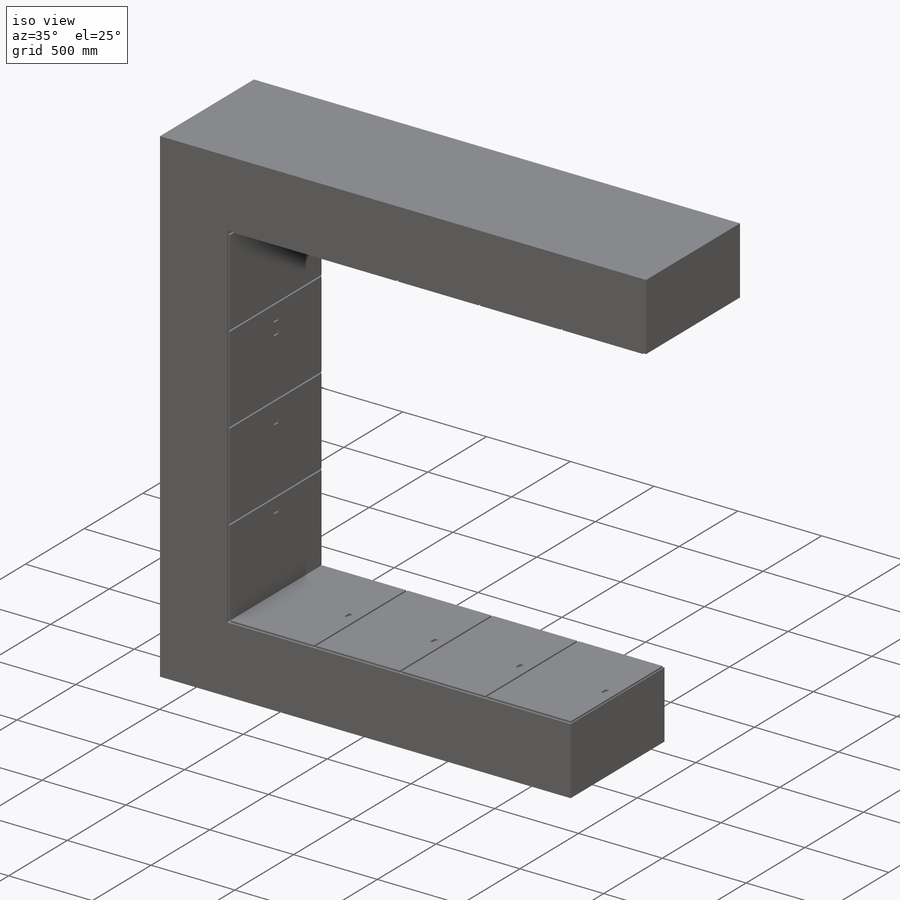
[diagram: iso view]
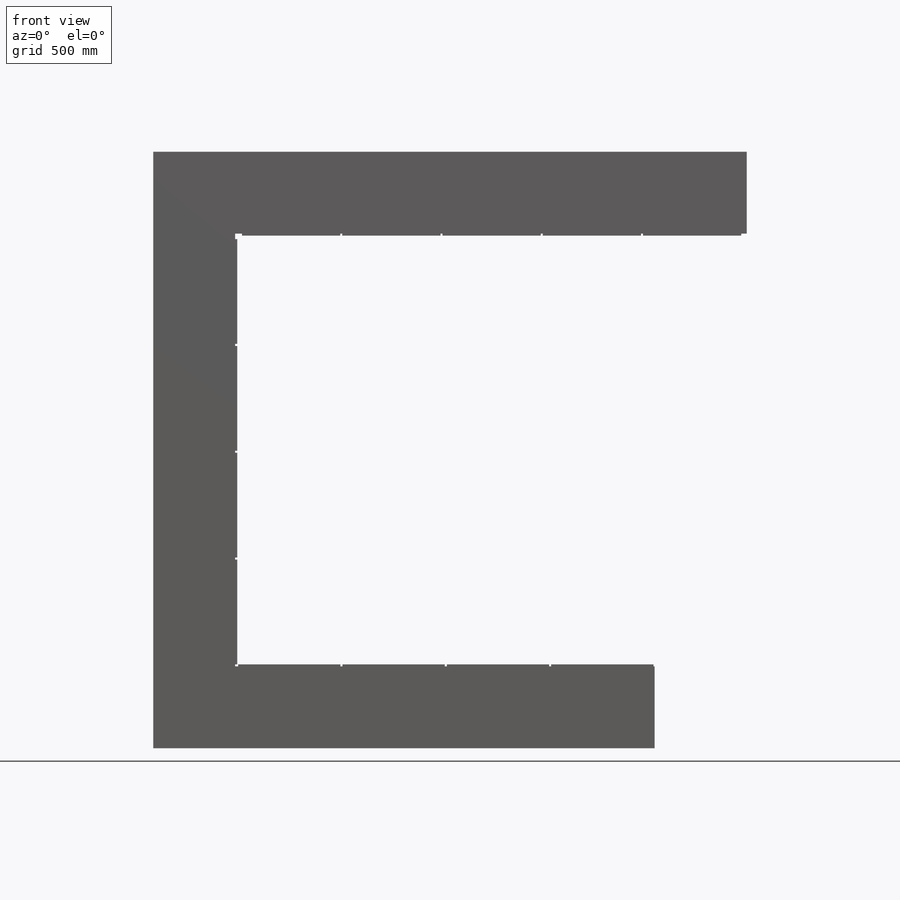
[diagram: front view]
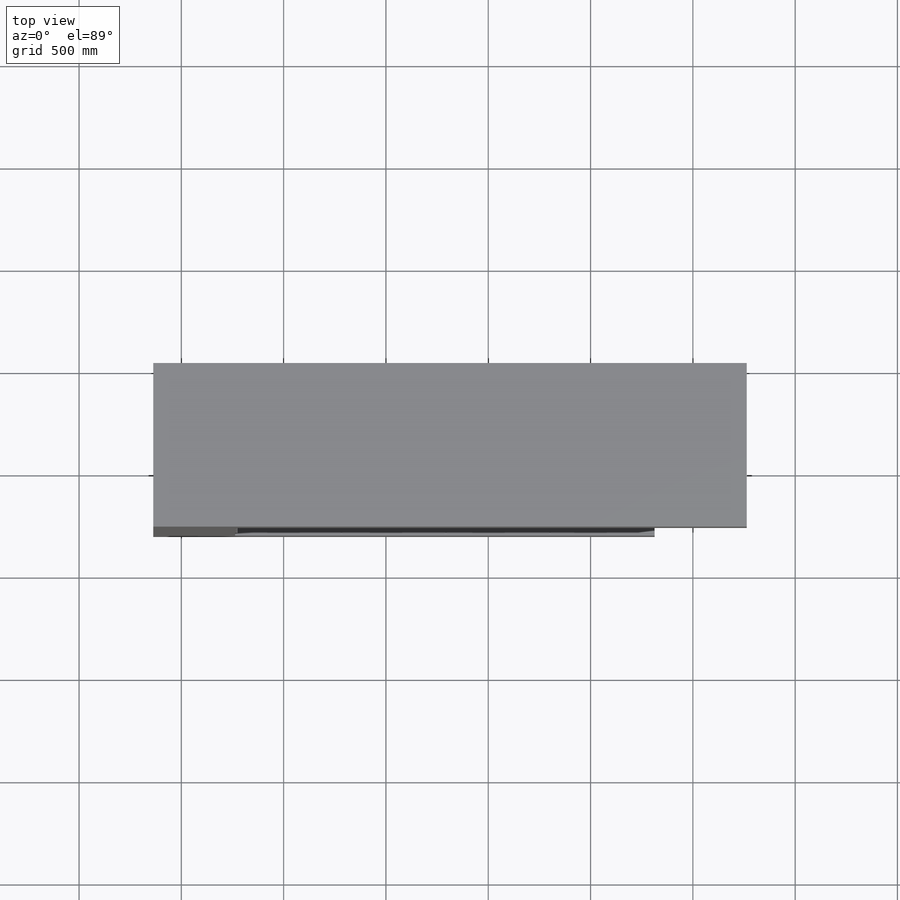
[diagram: top view]
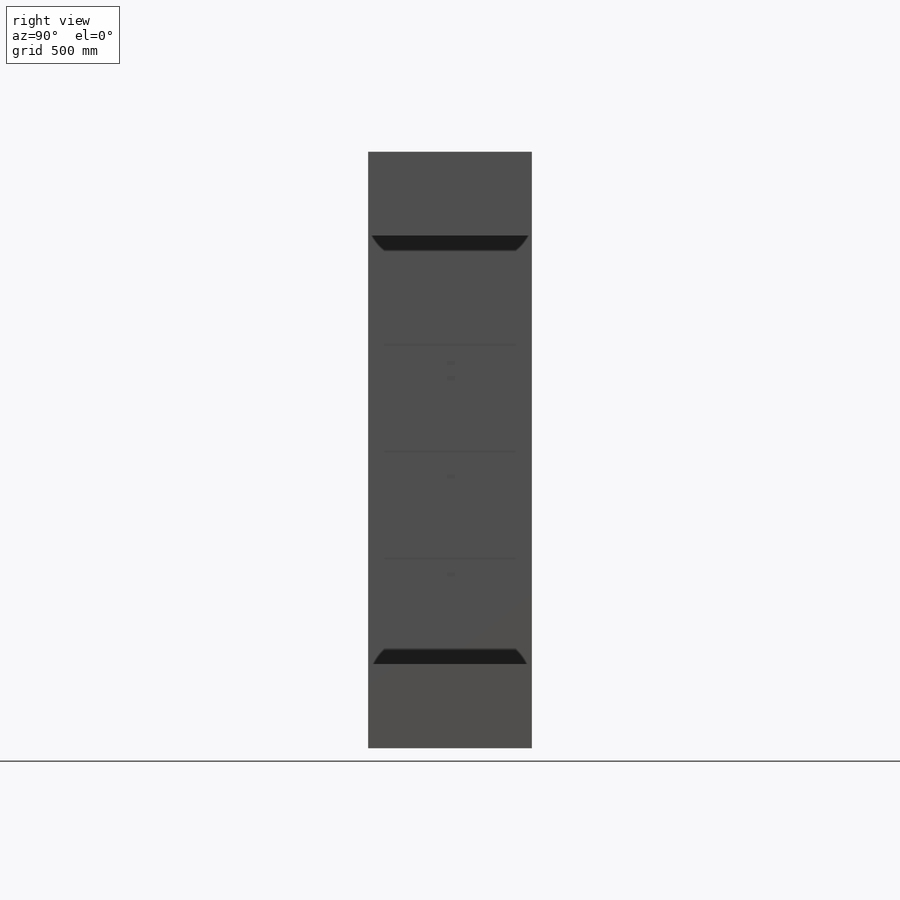
[diagram: right view]
SOLIDWORKS PART (.sldprt)
format: sldprt  version: not decoded by parser v0  size: 354,304 bytes
history: native  units: mm
features: sketch x4, extrude x4, material x1 (+12 scaffold rows collapsed)
feature tree (21):
  scaffold x12  (default folders/planes/origin — collapsed)
  material  "Material <not specified>"
  sketch  "Sketch1"  dims[c1.D1=~47.614232mm c1.D2=~175.381183mm c2.D1=400.0mm c2.D2=2915.0mm c2.D3=400.0mm c2.D4=400.0mm c2.D5=2450.0mm c2.D6=2900.0mm]
  extrude  "Boss-Extrude1"  Depth=800mm
  sketch  "Sketch2"  dims[c1.D1=~670.77805mm c1.D2=~512.94792mm c2.D1=500.0mm c2.D2=~58.546479mm c2.D3=~27.182294mm c3.D2=760.0mm c3.D3=360.0mm c3.D4=500.0mm c3.D5=20.0mm c3.D6=40.0mm c3.D7=10.0mm c3.D8=10.0mm c3.D9=10.0mm c4.D4=4.0]
  extrude  "Boss-Extrude2"  Depth=10mm
  sketch  "Sketch3"  dims[c1.D1=~577.34444mm c1.D2=~706.147625mm c2.D1=512.0mm c2.D2=~12.557121mm c2.D3=~71.886381mm c3.D2=40.0mm c3.D3=20.0mm c3.D4=375.0mm c3.D6=20.0mm c3.D7=760.0mm c3.D5=512.0mm c3.D8=512.0mm c3.D9=512.0mm c3.D10=10.0mm c3.D11=10.0mm c3.D12=10.0mm c3.D13=10.0mm c4.D7=10.0mm c4.D6=10.0mm]
  extrude  "Boss-Extrude3"  Depth=10mm
  sketch  "Sketch4"  dims[c1.D1=~615.848158mm c1.D2=~454.569802mm c2.D1=760.0mm c2.D2=10.0mm c2.D3=~105.153032mm c2.D4=~48.975385mm c3.D3=40.0mm c3.D4=20.0mm c3.D5=306.0mm c3.D7=480.0mm c3.D1=10.0mm c3.D8=10.0mm c3.D6=5.0]
  extrude  "Boss-Extrude4"  Depth=10mm
decode coverage: 8 of 8 modeling features carry decoded parameters
note: ~ marks probable driven/reference dimensions
note: suppression state not decoded; provenance and decode notes live in map.json
